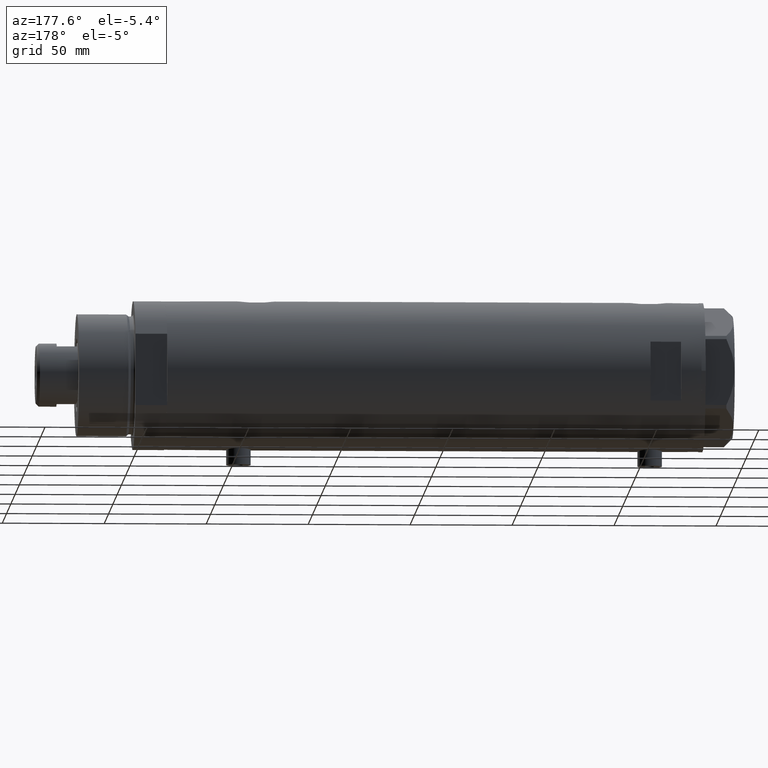
[diagram: clean part render]
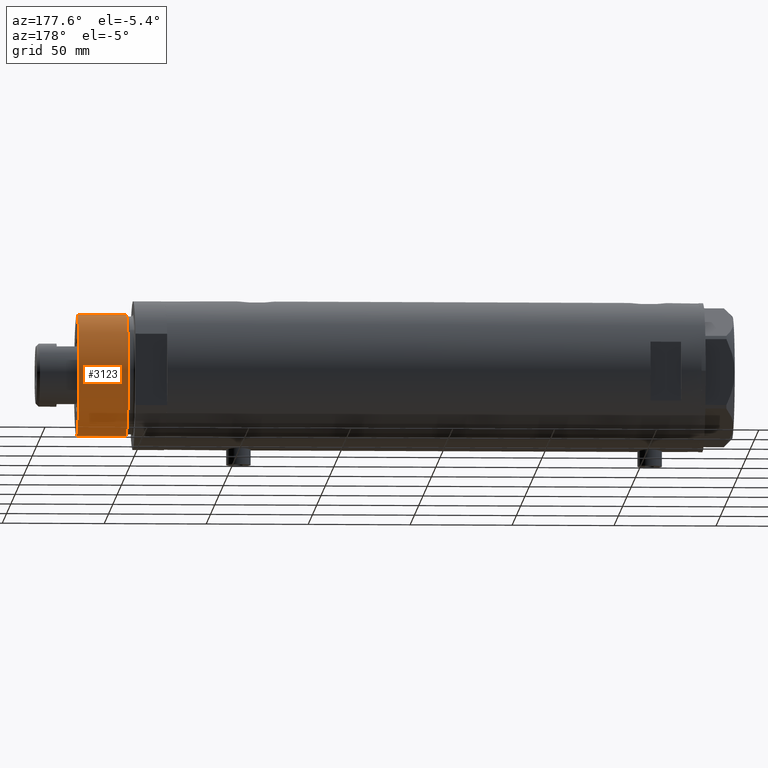
[diagram: same view with one face highlighted and labeled with its STEP entity id]
A machine part, auxiliary view. The second image highlights one B-rep face of the part: STEP entity #3123.
In plain terms, the highlighted cylindrical surface (partial cylindrical patch) has radius 30 mm, axis along (-1, -0, 0).
Its self-contained STEP definition (entity closure, byte-faithful):
#10 = CARTESIAN_POINT ( 'NONE',  ( 30.00000000000000000, 3.673940397442059178E-15, 43.07000000000000028 ) ) ;
#430 = VERTEX_POINT ( 'NONE', #3349 ) ;
#434 = FACE_OUTER_BOUND ( 'NONE', #709, .T. ) ;
#514 = VECTOR ( 'NONE', #4780, 1000.000000000000000 ) ;
#575 = VERTEX_POINT ( 'NONE', #641 ) ;
#590 = DIRECTION ( 'NONE',  ( -0.000000000000000000, -0.000000000000000000, 1.000000000000000000 ) ) ;
#641 = CARTESIAN_POINT ( 'NONE',  ( -30.00000000000000000, 0.000000000000000000, 43.07000000000000028 ) ) ;
#709 = EDGE_LOOP ( 'NONE', ( #2363, #1203, #3077, #4568 ) ) ;
#753 = AXIS2_PLACEMENT_3D ( 'NONE', #1906, #2295, #1234 ) ;
#1122 = DIRECTION ( 'NONE',  ( 0.000000000000000000, 0.000000000000000000, 1.000000000000000000 ) ) ;
#1144 = VERTEX_POINT ( 'NONE', #3200 ) ;
#1146 = VECTOR ( 'NONE', #4440, 1000.000000000000000 ) ;
#1203 = ORIENTED_EDGE ( 'NONE', *, *, #4206, .T. ) ;
#1219 = EDGE_CURVE ( 'NONE', #575, #1144, #4758, .T. ) ;
#1234 = DIRECTION ( 'NONE',  ( -1.000000000000000000, 0.000000000000000000, 0.000000000000000000 ) ) ;
#1906 = CARTESIAN_POINT ( 'NONE',  ( 0.000000000000000000, 0.000000000000000000, 43.07000000000000028 ) ) ;
#1928 = LINE ( 'NONE', #10, #1146 ) ;
#2068 = AXIS2_PLACEMENT_3D ( 'NONE', #3681, #1122, #2592 ) ;
#2295 = DIRECTION ( 'NONE',  ( -0.000000000000000000, -0.000000000000000000, -1.000000000000000000 ) ) ;
#2305 = CIRCLE ( 'NONE', #4093, 30.00000000000000000 ) ;
#2363 = ORIENTED_EDGE ( 'NONE', *, *, #3444, .F. ) ;
#2465 = CARTESIAN_POINT ( 'NONE',  ( 30.00000000000000000, 3.673940397442059178E-15, 43.07000000000000028 ) ) ;
#2592 = DIRECTION ( 'NONE',  ( 1.000000000000000000, 0.000000000000000000, 0.000000000000000000 ) ) ;
#2808 = VERTEX_POINT ( 'NONE', #2465 ) ;
#3077 = ORIENTED_EDGE ( 'NONE', *, *, #4572, .T. ) ;
#3097 = CYLINDRICAL_SURFACE ( 'NONE', #753, 30.00000000000000000 ) ;
#3123 = ADVANCED_FACE ( 'NONE', ( #434 ), #3097, .T. ) ;
#3200 = CARTESIAN_POINT ( 'NONE',  ( -30.00000000000000000, 0.000000000000000000, 18.87384048104053846 ) ) ;
#3270 = DIRECTION ( 'NONE',  ( 1.000000000000000000, 0.000000000000000000, 0.000000000000000000 ) ) ;
#3349 = CARTESIAN_POINT ( 'NONE',  ( 30.00000000000000000, 3.673940397442059178E-15, 18.87384048104053846 ) ) ;
#3444 = EDGE_CURVE ( 'NONE', #2808, #575, #3622, .T. ) ;
#3622 = CIRCLE ( 'NONE', #2068, 30.00000000000000000 ) ;
#3681 = CARTESIAN_POINT ( 'NONE',  ( 0.000000000000000000, 0.000000000000000000, 43.07000000000000028 ) ) ;
#3966 = CARTESIAN_POINT ( 'NONE',  ( 0.000000000000000000, 0.000000000000000000, 18.87384048104053846 ) ) ;
#4093 = AXIS2_PLACEMENT_3D ( 'NONE', #3966, #590, #3270 ) ;
#4206 = EDGE_CURVE ( 'NONE', #2808, #430, #1928, .T. ) ;
#4426 = CARTESIAN_POINT ( 'NONE',  ( -30.00000000000000000, 0.000000000000000000, 43.07000000000000028 ) ) ;
#4440 = DIRECTION ( 'NONE',  ( -0.000000000000000000, -0.000000000000000000, -1.000000000000000000 ) ) ;
#4568 = ORIENTED_EDGE ( 'NONE', *, *, #1219, .F. ) ;
#4572 = EDGE_CURVE ( 'NONE', #430, #1144, #2305, .T. ) ;
#4758 = LINE ( 'NONE', #4426, #514 ) ;
#4780 = DIRECTION ( 'NONE',  ( -0.000000000000000000, -0.000000000000000000, -1.000000000000000000 ) ) ;